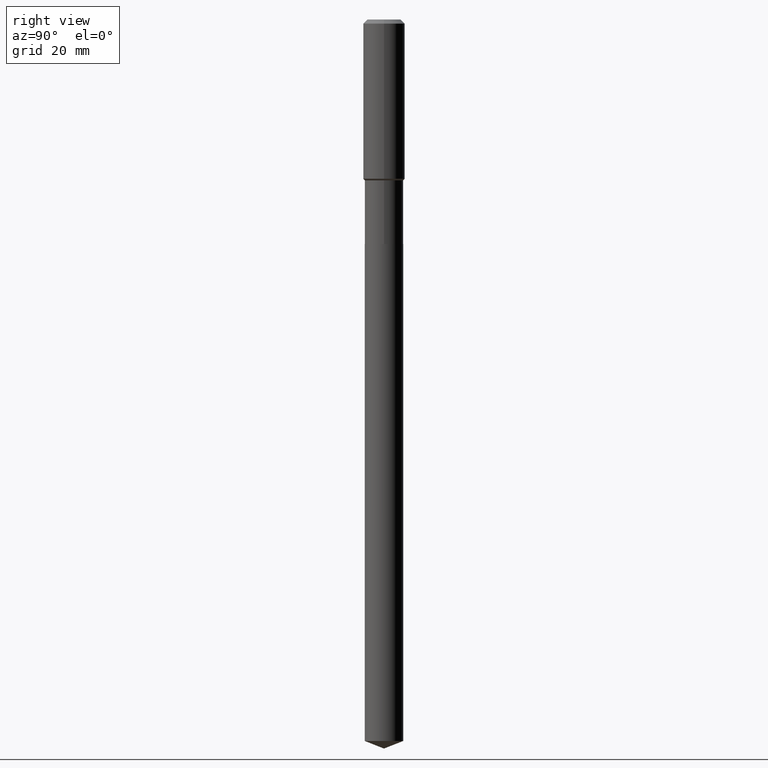
[diagram: clean part render]
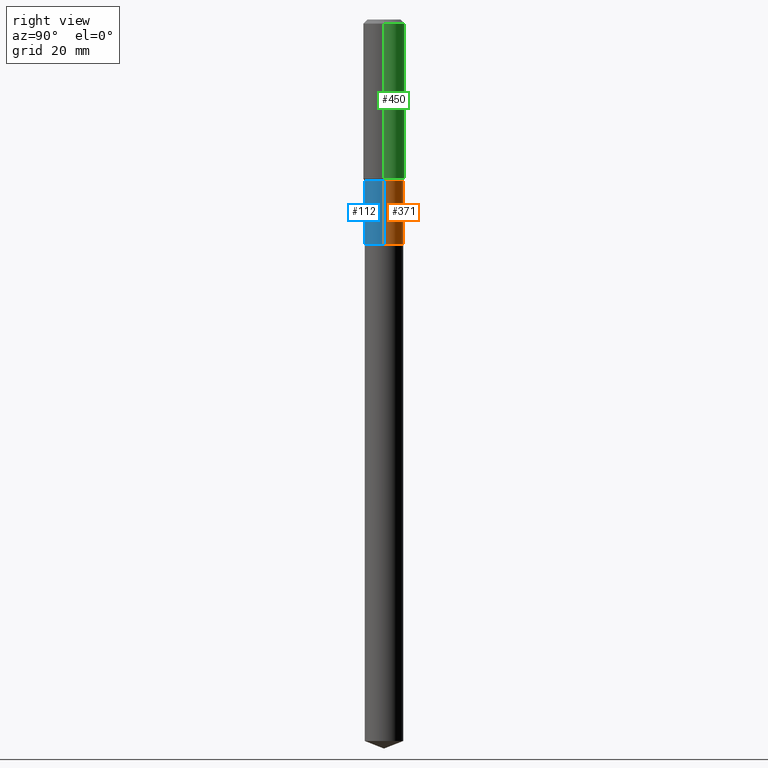
[diagram: same view with three faces highlighted in distinct colors, each labeled with its STEP entity id]
A machine part, right view with three faces highlighted in distinct colors.
Their STEP definitions:

[orange] entity #371 — the highlighted cylindrical surface (edge-blend (fillet) strip) has radius 5.5562 mm, axis along (-0, 0, 1).
#2 = CARTESIAN_POINT ( 'NONE',  ( 0.2187499999999998890, -7.897381640329306289E-15, -1.824400000000000244 ) ) ;
#31 = VECTOR ( 'NONE', #41, 39.37007874015748143 ) ;
#41 = DIRECTION ( 'NONE',  ( -2.445468806185136877E-29, 3.491481338843145188E-15, 1.000000000000000000 ) ) ;
#64 = CYLINDRICAL_SURFACE ( 'NONE', #258, 0.2187499999999999445 ) ;
#74 = ORIENTED_EDGE ( 'NONE', *, *, #170, .T. ) ;
#76 = CARTESIAN_POINT ( 'NONE',  ( 0.2187499999999999445, -1.527523085743870449E-15, 1.066663669705360604E-29 ) ) ;
#77 = LINE ( 'NONE', #76, #31 ) ;
#84 = EDGE_CURVE ( 'NONE', #156, #90, #77, .T. ) ;
#86 = DIRECTION ( 'NONE',  ( -2.445468806185136597E-29, 3.491481338843145583E-15, 1.000000000000000000 ) ) ;
#88 = DIRECTION ( 'NONE',  ( -2.445468806185136877E-29, 3.491481338843145188E-15, 1.000000000000000000 ) ) ;
#90 = VERTEX_POINT ( 'NONE', #2 ) ;
#100 = VECTOR ( 'NONE', #88, 39.37007874015748143 ) ;
#107 = CIRCLE ( 'NONE', #229, 0.2187500000000000000 ) ;
#144 = ORIENTED_EDGE ( 'NONE', *, *, #332, .F. ) ;
#156 = VERTEX_POINT ( 'NONE', #187 ) ;
#170 = EDGE_CURVE ( 'NONE', #412, #436, #266, .T. ) ;
#178 = EDGE_CURVE ( 'NONE', #156, #412, #107, .T. ) ;
#187 = CARTESIAN_POINT ( 'NONE',  ( 0.2187500000000000000, -1.041613627817074946E-14, -2.545799999999999841 ) ) ;
#205 = ORIENTED_EDGE ( 'NONE', *, *, #178, .T. ) ;
#212 = AXIS2_PLACEMENT_3D ( 'NONE', #330, #247, #433 ) ;
#229 = AXIS2_PLACEMENT_3D ( 'NONE', #427, #86, #378 ) ;
#245 = DIRECTION ( 'NONE',  ( 1.000000000000000000, -6.982962677686266711E-15, 4.876176775795935232E-29 ) ) ;
#247 = DIRECTION ( 'NONE',  ( -2.445468806185136597E-29, 3.491481338843145583E-15, 1.000000000000000000 ) ) ;
#258 = AXIS2_PLACEMENT_3D ( 'NONE', #474, #317, #245 ) ;
#266 = LINE ( 'NONE', #423, #100 ) ;
#275 = ORIENTED_EDGE ( 'NONE', *, *, #84, .F. ) ;
#317 = DIRECTION ( 'NONE',  ( -2.445468806185136597E-29, 3.491481338843145583E-15, 1.000000000000000000 ) ) ;
#330 = CARTESIAN_POINT ( 'NONE',  ( 4.461513290004164048E-29, -6.369858554585436235E-15, -1.824400000000000244 ) ) ;
#332 = EDGE_CURVE ( 'NONE', #90, #436, #454, .T. ) ;
#364 = EDGE_LOOP ( 'NONE', ( #205, #74, #144, #275 ) ) ;
#371 = ADVANCED_FACE ( 'NONE', ( #437 ), #64, .T. ) ;
#378 = DIRECTION ( 'NONE',  ( 1.000000000000000000, -6.982962677686262766E-15, 0.000000000000000000 ) ) ;
#394 = CARTESIAN_POINT ( 'NONE',  ( -0.2187499999999998890, -6.074923639030938662E-15, -1.824400000000000244 ) ) ;
#412 = VERTEX_POINT ( 'NONE', #446 ) ;
#423 = CARTESIAN_POINT ( 'NONE',  ( -0.2187499999999999445, 1.554312234475218762E-15, -1.076017050993260482E-29 ) ) ;
#427 = CARTESIAN_POINT ( 'NONE',  ( 6.225674486786120359E-29, -8.888613192426879403E-15, -2.545799999999999841 ) ) ;
#433 = DIRECTION ( 'NONE',  ( 1.000000000000000000, -6.982962677686266711E-15, 0.000000000000000000 ) ) ;
#436 = VERTEX_POINT ( 'NONE', #394 ) ;
#437 = FACE_OUTER_BOUND ( 'NONE', #364, .T. ) ;
#446 = CARTESIAN_POINT ( 'NONE',  ( -0.2187500000000000000, -6.074923639030938662E-15, -2.545799999999999841 ) ) ;
#454 = CIRCLE ( 'NONE', #212, 0.2187499999999998890 ) ;
#474 = CARTESIAN_POINT ( 'NONE',  ( 0.000000000000000000, 0.000000000000000000, 0.000000000000000000 ) ) ;

[blue] entity #112 — the highlighted cylindrical surface (edge-blend (fillet) strip) has radius 5.5562 mm, axis along (-0, 0, 1).
#2 = CARTESIAN_POINT ( 'NONE',  ( 0.2187499999999998890, -7.897381640329306289E-15, -1.824400000000000244 ) ) ;
#4 = DIRECTION ( 'NONE',  ( -2.445468806185136597E-29, 3.491481338843145583E-15, 1.000000000000000000 ) ) ;
#31 = VECTOR ( 'NONE', #41, 39.37007874015748143 ) ;
#37 = CARTESIAN_POINT ( 'NONE',  ( 6.225674486786120359E-29, -8.888613192426879403E-15, -2.545799999999999841 ) ) ;
#41 = DIRECTION ( 'NONE',  ( -2.445468806185136877E-29, 3.491481338843145188E-15, 1.000000000000000000 ) ) ;
#76 = CARTESIAN_POINT ( 'NONE',  ( 0.2187499999999999445, -1.527523085743870449E-15, 1.066663669705360604E-29 ) ) ;
#77 = LINE ( 'NONE', #76, #31 ) ;
#84 = EDGE_CURVE ( 'NONE', #156, #90, #77, .T. ) ;
#88 = DIRECTION ( 'NONE',  ( -2.445468806185136877E-29, 3.491481338843145188E-15, 1.000000000000000000 ) ) ;
#90 = VERTEX_POINT ( 'NONE', #2 ) ;
#100 = VECTOR ( 'NONE', #88, 39.37007874015748143 ) ;
#103 = ORIENTED_EDGE ( 'NONE', *, *, #170, .F. ) ;
#112 = ADVANCED_FACE ( 'NONE', ( #306 ), #166, .T. ) ;
#116 = DIRECTION ( 'NONE',  ( 1.000000000000000000, -6.982962677686266711E-15, 0.000000000000000000 ) ) ;
#125 = CIRCLE ( 'NONE', #401, 0.2187500000000000000 ) ;
#156 = VERTEX_POINT ( 'NONE', #187 ) ;
#166 = CYLINDRICAL_SURFACE ( 'NONE', #430, 0.2187499999999999445 ) ;
#170 = EDGE_CURVE ( 'NONE', #412, #436, #266, .T. ) ;
#179 = DIRECTION ( 'NONE',  ( -2.445468806185136597E-29, 3.491481338843145583E-15, 1.000000000000000000 ) ) ;
#180 = CIRCLE ( 'NONE', #221, 0.2187499999999998890 ) ;
#185 = EDGE_LOOP ( 'NONE', ( #103, #341, #399, #345 ) ) ;
#187 = CARTESIAN_POINT ( 'NONE',  ( 0.2187500000000000000, -1.041613627817074946E-14, -2.545799999999999841 ) ) ;
#221 = AXIS2_PLACEMENT_3D ( 'NONE', #374, #4, #116 ) ;
#265 = CARTESIAN_POINT ( 'NONE',  ( 0.000000000000000000, 0.000000000000000000, 0.000000000000000000 ) ) ;
#266 = LINE ( 'NONE', #423, #100 ) ;
#291 = DIRECTION ( 'NONE',  ( 1.000000000000000000, -6.982962677686262766E-15, 0.000000000000000000 ) ) ;
#306 = FACE_OUTER_BOUND ( 'NONE', #185, .T. ) ;
#341 = ORIENTED_EDGE ( 'NONE', *, *, #460, .T. ) ;
#345 = ORIENTED_EDGE ( 'NONE', *, *, #475, .F. ) ;
#374 = CARTESIAN_POINT ( 'NONE',  ( 4.461513290004164048E-29, -6.369858554585436235E-15, -1.824400000000000244 ) ) ;
#387 = DIRECTION ( 'NONE',  ( 1.000000000000000000, -6.982962677686266711E-15, 4.876176775795935232E-29 ) ) ;
#394 = CARTESIAN_POINT ( 'NONE',  ( -0.2187499999999998890, -6.074923639030938662E-15, -1.824400000000000244 ) ) ;
#399 = ORIENTED_EDGE ( 'NONE', *, *, #84, .T. ) ;
#401 = AXIS2_PLACEMENT_3D ( 'NONE', #37, #179, #291 ) ;
#412 = VERTEX_POINT ( 'NONE', #446 ) ;
#423 = CARTESIAN_POINT ( 'NONE',  ( -0.2187499999999999445, 1.554312234475218762E-15, -1.076017050993260482E-29 ) ) ;
#430 = AXIS2_PLACEMENT_3D ( 'NONE', #265, #471, #387 ) ;
#436 = VERTEX_POINT ( 'NONE', #394 ) ;
#446 = CARTESIAN_POINT ( 'NONE',  ( -0.2187500000000000000, -6.074923639030938662E-15, -2.545799999999999841 ) ) ;
#460 = EDGE_CURVE ( 'NONE', #412, #156, #125, .T. ) ;
#471 = DIRECTION ( 'NONE',  ( -2.445468806185136597E-29, 3.491481338843145583E-15, 1.000000000000000000 ) ) ;
#475 = EDGE_CURVE ( 'NONE', #436, #90, #180, .T. ) ;

[green] entity #450 — the highlighted cylindrical surface (edge-blend (fillet) strip) has radius 5.9995 mm, axis along (-0, 0, 1).
#7 = VERTEX_POINT ( 'NONE', #358 ) ;
#11 = ORIENTED_EDGE ( 'NONE', *, *, #335, .T. ) ;
#22 = AXIS2_PLACEMENT_3D ( 'NONE', #38, #292, #115 ) ;
#38 = CARTESIAN_POINT ( 'NONE',  ( 1.155239464041865331E-30, -1.649375784469511612E-16, -0.04724000000000027483 ) ) ;
#55 = EDGE_CURVE ( 'NONE', #228, #482, #113, .T. ) ;
#60 = DIRECTION ( 'NONE',  ( -2.445468806185136877E-29, 3.491481338843145188E-15, 1.000000000000000000 ) ) ;
#66 = LINE ( 'NONE', #391, #407 ) ;
#105 = VECTOR ( 'NONE', #131, 39.37007874015748143 ) ;
#113 = CIRCLE ( 'NONE', #22, 0.2361999999999999933 ) ;
#114 = CARTESIAN_POINT ( 'NONE',  ( -0.2361999999999999933, -1.558632949969428788E-15, -0.04724000000000027483 ) ) ;
#115 = DIRECTION ( 'NONE',  ( 1.000000000000000000, -6.982962677686266711E-15, 0.000000000000000000 ) ) ;
#131 = DIRECTION ( 'NONE',  ( -2.445468806185136877E-29, 3.491481338843145188E-15, 1.000000000000000000 ) ) ;
#134 = ORIENTED_EDGE ( 'NONE', *, *, #327, .T. ) ;
#193 = VERTEX_POINT ( 'NONE', #348 ) ;
#204 = DIRECTION ( 'NONE',  ( -2.445468806185136597E-29, 3.491481338843145583E-15, 1.000000000000000000 ) ) ;
#215 = CYLINDRICAL_SURFACE ( 'NONE', #447, 0.2362000000000001043 ) ;
#228 = VERTEX_POINT ( 'NONE', #274 ) ;
#244 = ORIENTED_EDGE ( 'NONE', *, *, #360, .F. ) ;
#257 = DIRECTION ( 'NONE',  ( 1.000000000000000000, -6.982962677686266711E-15, 4.876176775795935793E-29 ) ) ;
#274 = CARTESIAN_POINT ( 'NONE',  ( 0.2361999999999999933, -1.814313362916447440E-15, -0.04724000000000027483 ) ) ;
#280 = LINE ( 'NONE', #443, #105 ) ;
#292 = DIRECTION ( 'NONE',  ( -2.445468806185136597E-29, 3.491481338843145583E-15, 1.000000000000000000 ) ) ;
#327 = EDGE_CURVE ( 'NONE', #193, #7, #363, .T. ) ;
#335 = EDGE_CURVE ( 'NONE', #7, #482, #66, .T. ) ;
#338 = EDGE_LOOP ( 'NONE', ( #134, #11, #432, #244 ) ) ;
#348 = CARTESIAN_POINT ( 'NONE',  ( 0.2362000000000002153, -7.958307989692118736E-15, -1.806950000000000056 ) ) ;
#358 = CARTESIAN_POINT ( 'NONE',  ( -0.2362000000000002153, -4.630630263357264239E-15, -1.806950000000000056 ) ) ;
#360 = EDGE_CURVE ( 'NONE', #193, #228, #280, .T. ) ;
#363 = CIRCLE ( 'NONE', #369, 0.2362000000000002153 ) ;
#369 = AXIS2_PLACEMENT_3D ( 'NONE', #400, #204, #486 ) ;
#391 = CARTESIAN_POINT ( 'NONE',  ( -0.2362000000000001043, 1.678301941865357380E-15, -1.161852468318209317E-29 ) ) ;
#400 = CARTESIAN_POINT ( 'NONE',  ( 4.418839859336232115E-29, -6.308932205222621422E-15, -1.806950000000000056 ) ) ;
#407 = VECTOR ( 'NONE', #60, 39.37007874015748143 ) ;
#409 = DIRECTION ( 'NONE',  ( -2.445468806185136597E-29, 3.491481338843145583E-15, 1.000000000000000000 ) ) ;
#418 = FACE_OUTER_BOUND ( 'NONE', #338, .T. ) ;
#432 = ORIENTED_EDGE ( 'NONE', *, *, #55, .F. ) ;
#443 = CARTESIAN_POINT ( 'NONE',  ( 0.2362000000000001043, -1.649375784469496920E-15, 1.151752954443000508E-29 ) ) ;
#447 = AXIS2_PLACEMENT_3D ( 'NONE', #453, #409, #257 ) ;
#450 = ADVANCED_FACE ( 'NONE', ( #418 ), #215, .T. ) ;
#453 = CARTESIAN_POINT ( 'NONE',  ( 0.000000000000000000, 0.000000000000000000, 0.000000000000000000 ) ) ;
#482 = VERTEX_POINT ( 'NONE', #114 ) ;
#486 = DIRECTION ( 'NONE',  ( 1.000000000000000000, -6.982962677686266711E-15, 0.000000000000000000 ) ) ;